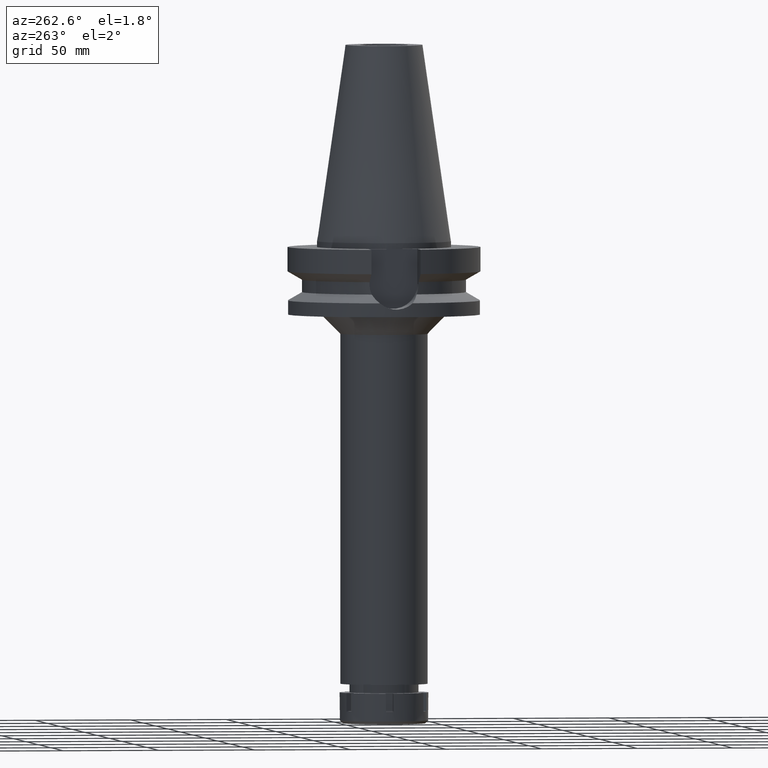
[diagram: clean part render]
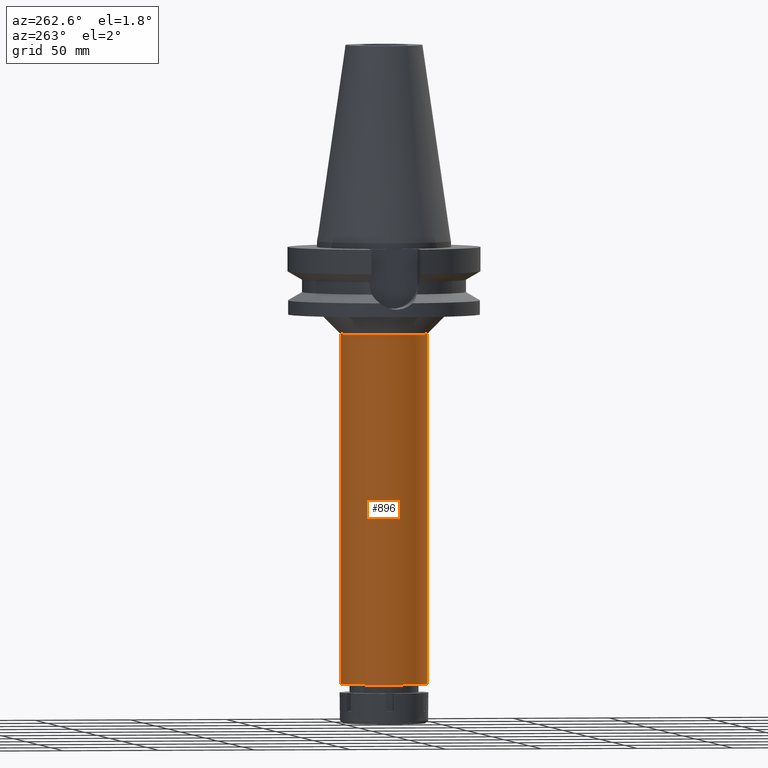
[diagram: same view with one face highlighted and labeled with its STEP entity id]
A machine part, auxiliary view. The second image highlights one B-rep face of the part: STEP entity #896.
In plain terms, the highlighted cylindrical surface (partial cylindrical patch) has radius 22.75 mm, axis along (0, 0, -1).
Its self-contained STEP definition (entity closure, byte-faithful):
#32 = VECTOR ( 'NONE', #2621, 1000.000000000000000 ) ;
#185 = DIRECTION ( 'NONE',  ( 0.0000000000000000000, 0.0000000000000000000, -1.000000000000000000 ) ) ;
#213 = VERTEX_POINT ( 'NONE', #734 ) ;
#734 = CARTESIAN_POINT ( 'NONE',  ( 0.0000000000000000000, -22.75000000000000000, -48.00000000000000000 ) ) ;
#896 = ADVANCED_FACE ( 'NONE', ( #2743 ), #3280, .T. ) ;
#998 = CARTESIAN_POINT ( 'NONE',  ( 0.0000000000000000000, 22.75000000000000000, -48.00000000000000000 ) ) ;
#1185 = CARTESIAN_POINT ( 'NONE',  ( 0.0000000000000000000, 2.681854025452999794E-14, -229.5000000000000000 ) ) ;
#1365 = AXIS2_PLACEMENT_3D ( 'NONE', #1631, #2461, #2387 ) ;
#1375 = VERTEX_POINT ( 'NONE', #1628 ) ;
#1476 = EDGE_LOOP ( 'NONE', ( #2921, #2050, #2999, #1681 ) ) ;
#1480 = DIRECTION ( 'NONE',  ( 0.0000000000000000000, 0.0000000000000000000, -1.000000000000000000 ) ) ;
#1601 = CIRCLE ( 'NONE', #3513, 22.75000000000000000 ) ;
#1628 = CARTESIAN_POINT ( 'NONE',  ( 0.0000000000000000000, 22.75000000000000000, -48.00000000000000000 ) ) ;
#1631 = CARTESIAN_POINT ( 'NONE',  ( 0.0000000000000000000, 2.681854025452999794E-14, 118.9899999999999949 ) ) ;
#1681 = ORIENTED_EDGE ( 'NONE', *, *, #2045, .T. ) ;
#1710 = LINE ( 'NONE', #1970, #2883 ) ;
#1773 = VERTEX_POINT ( 'NONE', #3045 ) ;
#1777 = DIRECTION ( 'NONE',  ( 0.0000000000000000000, -1.000000000000000000, 0.0000000000000000000 ) ) ;
#1956 = AXIS2_PLACEMENT_3D ( 'NONE', #1185, #2821, #2770 ) ;
#1970 = CARTESIAN_POINT ( 'NONE',  ( 0.0000000000000000000, -22.75000000000000000, -48.00000000000000000 ) ) ;
#2040 = EDGE_CURVE ( 'NONE', #213, #1375, #1601, .T. ) ;
#2045 = EDGE_CURVE ( 'NONE', #1375, #1773, #3191, .T. ) ;
#2050 = ORIENTED_EDGE ( 'NONE', *, *, #3208, .F. ) ;
#2188 = CARTESIAN_POINT ( 'NONE',  ( 0.0000000000000000000, -22.75000000000000000, -229.5000000000000000 ) ) ;
#2275 = VERTEX_POINT ( 'NONE', #2188 ) ;
#2387 = DIRECTION ( 'NONE',  ( 0.0000000000000000000, -1.000000000000000000, 0.0000000000000000000 ) ) ;
#2461 = DIRECTION ( 'NONE',  ( 0.0000000000000000000, 0.0000000000000000000, -1.000000000000000000 ) ) ;
#2621 = DIRECTION ( 'NONE',  ( 0.0000000000000000000, 0.0000000000000000000, -1.000000000000000000 ) ) ;
#2743 = FACE_OUTER_BOUND ( 'NONE', #1476, .T. ) ;
#2770 = DIRECTION ( 'NONE',  ( 0.0000000000000000000, 1.000000000000000000, 0.0000000000000000000 ) ) ;
#2821 = DIRECTION ( 'NONE',  ( 0.0000000000000000000, 0.0000000000000000000, 1.000000000000000000 ) ) ;
#2883 = VECTOR ( 'NONE', #1480, 1000.000000000000000 ) ;
#2921 = ORIENTED_EDGE ( 'NONE', *, *, #3132, .T. ) ;
#2999 = ORIENTED_EDGE ( 'NONE', *, *, #2040, .T. ) ;
#3045 = CARTESIAN_POINT ( 'NONE',  ( 0.0000000000000000000, 22.75000000000000000, -229.5000000000000000 ) ) ;
#3119 = CIRCLE ( 'NONE', #1956, 22.75000000000000000 ) ;
#3132 = EDGE_CURVE ( 'NONE', #1773, #2275, #3119, .T. ) ;
#3191 = LINE ( 'NONE', #998, #32 ) ;
#3208 = EDGE_CURVE ( 'NONE', #213, #2275, #1710, .T. ) ;
#3280 = CYLINDRICAL_SURFACE ( 'NONE', #1365, 22.75000000000000000 ) ;
#3487 = CARTESIAN_POINT ( 'NONE',  ( 0.0000000000000000000, 0.0000000000000000000, -48.00000000000000000 ) ) ;
#3513 = AXIS2_PLACEMENT_3D ( 'NONE', #3487, #185, #1777 ) ;